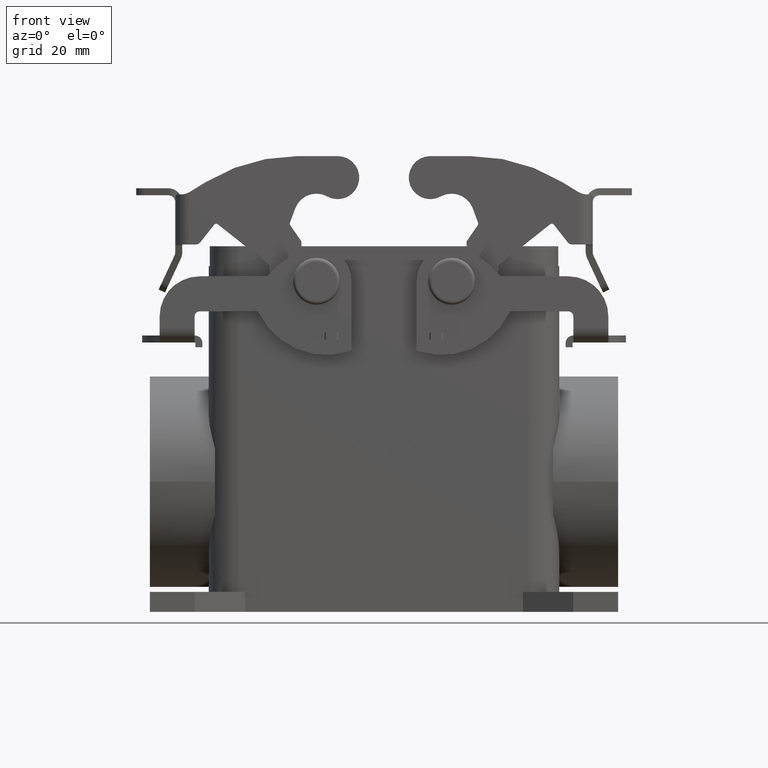
[diagram: clean part render]
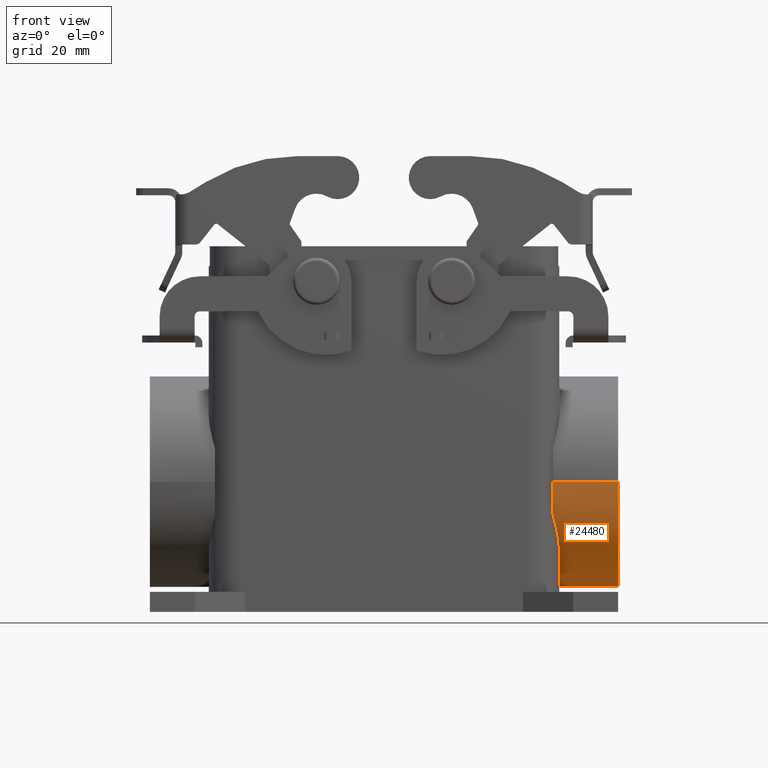
[diagram: same view with one face highlighted and labeled with its STEP entity id]
A machine part, front view. The second image highlights one B-rep face of the part: STEP entity #24480.
In plain terms, the highlighted cylindrical surface (partial cylindrical patch) has radius 21 mm, axis along (-1, 0, 0).
Its self-contained STEP definition (entity closure, byte-faithful):
#22870=CARTESIAN_POINT('',(33.25,0.,-40.));
#22880=DIRECTION('',(-1.,0.,0.));
#22890=DIRECTION('',(0.,-1.,0.));
#22900=AXIS2_PLACEMENT_3D('',#22870,#22880,#22890);
#22910=CYLINDRICAL_SURFACE('',#22900,21.);
#22920=CARTESIAN_POINT('',(33.25,21.,-40.));
#22930=DIRECTION('',(-1.,0.,0.));
#22940=VECTOR('',#22930,1.);
#22950=LINE('',#22920,#22940);
#22960=CARTESIAN_POINT('',(33.25,21.,-40.));
#22970=VERTEX_POINT('',#22960);
#22980=CARTESIAN_POINT('',(20.25,21.,-40.));
#22990=VERTEX_POINT('',#22980);
#23000=EDGE_CURVE('',#22970,#22990,#22950,.T.);
#23010=ORIENTED_EDGE('',*,*,#23000,.F.);
#23020=CARTESIAN_POINT('',(20.25,0.,-40.));
#23030=DIRECTION('',(1.,0.,0.));
#23040=DIRECTION('',(0.,-1.,0.));
#23050=AXIS2_PLACEMENT_3D('',#23020,#23030,#23040);
#23060=CIRCLE('',#23050,21.);
#23070=CARTESIAN_POINT('',(20.25,19.9157195746538,-46.6606391452887));
#23080=VERTEX_POINT('',#23070);
#23090=EDGE_CURVE('',#23080,#22990,#23060,.T.);
#23100=ORIENTED_EDGE('',*,*,#23090,.T.);
#23110=CARTESIAN_POINT('',(20.25,19.9157195746538,-46.6606391452887));
#23120=CARTESIAN_POINT('',(20.2883767828011,19.8659913522427,
-46.809329580378));
#23130=CARTESIAN_POINT('',(20.3267965326424,19.8145922746111,
-46.9574802820684));
#23140=CARTESIAN_POINT('',(20.3650976405297,19.7615274380406,
-47.1050709578137));
#23150=CARTESIAN_POINT('',(20.4033987487195,19.7084626010511,
-47.2526616347245));
#23160=CARTESIAN_POINT('',(20.4415812746475,19.6537319973468,
-47.3996922796367));
#23170=CARTESIAN_POINT('',(20.4794890897012,19.597340497402,
-47.5461410952145));
#23180=CARTESIAN_POINT('',(20.5173969049363,19.5409489971874,
-47.6925899114931));
#23190=CARTESIAN_POINT('',(20.5550300726837,19.4828966019911,
-47.8384568748946));
#23200=CARTESIAN_POINT('',(20.5922370265403,19.4231879971934,
-47.9837189345369));
#23210=CARTESIAN_POINT('',(20.6294417237685,19.3634830137652,
-48.1289721839315));
#23220=CARTESIAN_POINT('',(20.6662268982334,19.302112320304,
-48.2736456350323));
#23230=CARTESIAN_POINT('',(20.7024602597007,19.2390478828999,
-48.4177809759718));
#23240=CARTESIAN_POINT('',(20.7749237418458,19.1129246487102,
-48.7060387660768));
#23250=CARTESIAN_POINT('',(20.8451501626198,18.9800731090618,
-48.9920308513166));
#23260=CARTESIAN_POINT('',(20.9119393003487,18.8405429951074,
-49.2754482182425));
#23270=CARTESIAN_POINT('',(20.9453338799864,18.7707779156234,
-49.4171569474218));
#23280=CARTESIAN_POINT('',(20.9778693578236,18.699343672852,
-49.5582214249969));
#23290=CARTESIAN_POINT('',(21.0093966422258,18.6262467545755,
-49.698604633537));
#23300=CARTESIAN_POINT('',(21.0409249801447,18.5531473936903,
-49.8389925331262));
#23310=CARTESIAN_POINT('',(21.0714630622551,18.4783433683495,
-49.9787790843531));
#23320=CARTESIAN_POINT('',(21.1008516088041,18.4018506584233,
-50.1178996014532));
#23330=CARTESIAN_POINT('',(21.1302401541766,18.3253579515592,
-50.257020112984));
#23340=CARTESIAN_POINT('',(21.1584792158182,18.2471766018043,
-50.3954745228282));
#23350=CARTESIAN_POINT('',(21.1854080129149,18.1673251489206,
-50.5331997481011));
#23360=CARTESIAN_POINT('',(21.2123368094633,18.0874736976627,
-50.6709249705699));
#23370=CARTESIAN_POINT('',(21.2379554139272,18.0059521707404,
-50.8079209728712));
#23380=CARTESIAN_POINT('',(21.2621005105393,17.9227814281848,
-50.9441265470334));
#23390=CARTESIAN_POINT('',(21.286243743224,17.8396171061551,
-51.0803216065439));
#23400=CARTESIAN_POINT('',(21.3089194868721,17.7547872805956,
-51.2157548952033));
#23410=CARTESIAN_POINT('',(21.3299694173103,17.6682582956666,
-51.35044707479));
#23420=CARTESIAN_POINT('',(21.3510178681595,17.5817353928161,
-51.4851297869316));
#23430=CARTESIAN_POINT('',(21.3704334887982,17.4935389595446,
-51.6190300270251));
#23440=CARTESIAN_POINT('',(21.3880341674817,17.4037129810172,
-51.7520540534144));
#23450=CARTESIAN_POINT('',(21.4056348456611,17.3138870050628,
-51.8850780759932));
#23460=CARTESIAN_POINT('',(21.4214206579212,17.2224315362035,
-52.0172258155879));
#23470=CARTESIAN_POINT('',(21.4352054162366,17.1293956263543,
-52.1484075283797));
#23480=CARTESIAN_POINT('',(21.4489894273181,17.0363647597268,
-52.2795821301704));
#23490=CARTESIAN_POINT('',(21.4607752814732,16.9417418997959,
-52.4098084196681));
#23500=CARTESIAN_POINT('',(21.4703721749691,16.8455300937106,
-52.5390635958929));
#23510=CARTESIAN_POINT('',(21.4799688633692,16.7493203437736,
-52.6683160097974));
#23520=CARTESIAN_POINT('',(21.4873723295644,16.6515637153786,
-52.7965404974052));
#23530=CARTESIAN_POINT('',(21.4923803464142,16.5522875847781,
-52.923690483403));
#23540=CARTESIAN_POINT('',(21.4973883922669,16.4530108792393,
-53.0508412057649));
#23550=CARTESIAN_POINT('',(21.5,16.3522286203797,-53.1768989715424));
#23560=CARTESIAN_POINT('',(21.5,16.25,-53.301785594423));
#23570=B_SPLINE_CURVE_WITH_KNOTS('',3,(#23110,#23120,#23130,#23140,
#23150,#23160,#23170,#23180,#23190,#23200,#23210,#23220,#23230,#23240,
#23250,#23260,#23270,#23280,#23290,#23300,#23310,#23320,#23330,#23340,
#23350,#23360,#23370,#23380,#23390,#23400,#23410,#23420,#23430,#23440,
#23450,#23460,#23470,#23480,#23490,#23500,#23510,#23520,#23530,#23540,
#23550,#23560),.UNSPECIFIED.,.F.,.F.,(4,3,3,3,3,3,3,3,3,3,3,3,3,3,3,4),(
0.,0.484305253596196,0.968655349831781,1.45293340259057,1.93716134971959
,2.90590140570524,3.3901476455671,3.87444007946818,4.3588373050292,
4.84315126400837,5.32740526702867,5.81182560930186,6.29617301453959,
6.78037545541279,7.26456501471451,7.74873538491459),.UNSPECIFIED.);
#23580=CARTESIAN_POINT('',(21.5,16.25,-53.301785594423));
#23590=VERTEX_POINT('',#23580);
#23600=EDGE_CURVE('',#23080,#23590,#23570,.T.);
#23610=ORIENTED_EDGE('',*,*,#23600,.F.);
#23620=CARTESIAN_POINT('',(21.5,0.,-40.));
#23630=DIRECTION('',(-1.,0.,0.));
#23640=DIRECTION('',(0.,-1.,0.));
#23650=AXIS2_PLACEMENT_3D('',#23620,#23630,#23640);
#23660=CIRCLE('',#23650,21.);
#23670=CARTESIAN_POINT('',(21.5,-16.25,-53.301785594423));
#23680=VERTEX_POINT('',#23670);
#23690=EDGE_CURVE('',#23590,#23680,#23660,.T.);
#23700=ORIENTED_EDGE('',*,*,#23690,.F.);
#23710=CARTESIAN_POINT('',(21.5,-16.2499999999997,-53.3017855944235));
#23720=CARTESIAN_POINT('',(21.5,-16.35222967979,-53.1768976773238));
#23730=CARTESIAN_POINT('',(21.4973878967916,-16.4530250917143,
-53.0508232733011));
#23740=CARTESIAN_POINT('',(21.4923796736825,-16.5523009203381,
-52.9236734035868));
#23750=CARTESIAN_POINT('',(21.4873710875637,-16.6515839447462,
-52.7965143177011));
#23760=CARTESIAN_POINT('',(21.4799662441862,-16.7493501235845,
-52.6682764668193));
#23770=CARTESIAN_POINT('',(21.4703700214557,-16.8455516828446,
-52.539034592049));
#23780=CARTESIAN_POINT('',(21.4607733968692,-16.9417572706865,
-52.4097873050851));
#23790=CARTESIAN_POINT('',(21.4489835197123,-17.0364092110862,
-52.2795204226765));
#23800=CARTESIAN_POINT('',(21.4351991374398,-17.1294380017572,
-52.1483477783588));
#23810=CARTESIAN_POINT('',(21.4214158593594,-17.2224593403968,
-52.0171856415696));
#23820=CARTESIAN_POINT('',(21.4056332007311,-17.3138953623348,
-51.8850656882558));
#23830=CARTESIAN_POINT('',(21.3880342588942,-17.4037125144888,
-51.7520547443001));
#23840=CARTESIAN_POINT('',(21.3704355181391,-17.4935286404114,
-51.6190453200988));
#23850=CARTESIAN_POINT('',(21.3510211414812,-17.5817213104445,
-51.4851514545964));
#23860=CARTESIAN_POINT('',(21.3299717771303,-17.6682485952274,
-51.3504621746096));
#23870=CARTESIAN_POINT('',(21.3089223484836,-17.7547761443099,
-51.2157724832114));
#23880=CARTESIAN_POINT('',(21.2862381767248,-17.8396371563957,
-51.0802892255755));
#23890=CARTESIAN_POINT('',(21.2620957934869,-17.9227976765529,
-50.9440999376536));
#23900=CARTESIAN_POINT('',(21.2379518903774,-18.0059634320389,
-50.8079020760036));
#23910=CARTESIAN_POINT('',(21.2123345835208,-18.0874804412719,
-50.6709134323494));
#23920=CARTESIAN_POINT('',(21.1854069726917,-18.1673282334719,
-50.5331944279641));
#23930=CARTESIAN_POINT('',(21.15847936133,-18.2471760272514,
-50.3954754208546));
#23940=CARTESIAN_POINT('',(21.1302413720161,-18.325354578102,
-50.2570260857344));
#23950=CARTESIAN_POINT('',(21.1008535278766,-18.4018456635516,
-50.117908685806));
#23960=CARTESIAN_POINT('',(21.0714656684107,-18.4783367888933,
-49.9787912133242));
#23970=CARTESIAN_POINT('',(21.04092796506,-18.553140254142,
-49.8390060326418));
#23980=CARTESIAN_POINT('',(21.00939923022,-18.6262407542274,
-49.6986161572442));
#23990=CARTESIAN_POINT('',(20.9778696817983,-18.6993431406312,
-49.5582226591627));
#24000=CARTESIAN_POINT('',(20.9453323396396,-18.7707812868046,
-49.4171502782643));
#24010=CARTESIAN_POINT('',(20.9119370844581,-18.8405476243402,
-49.2754388152165));
#24020=CARTESIAN_POINT('',(20.8451465394803,-18.9800803717254,
-48.9920157422342));
#24030=CARTESIAN_POINT('',(20.7749230827943,-19.1129247626711,
-48.7060367891282));
#24040=CARTESIAN_POINT('',(20.7024708365975,-19.2390294736509,
-48.4178230506463));
#24050=CARTESIAN_POINT('',(20.6662463005113,-19.3020790669114,
-48.2737224945117));
#24060=CARTESIAN_POINT('',(20.6294619041158,-19.3634502522878,
-48.1290511416063));
#24070=CARTESIAN_POINT('',(20.592246008097,-19.423173583815,
-47.9837540000297));
#24080=CARTESIAN_POINT('',(20.5550317872619,-19.4828942270407,
-47.8384633986528));
#24090=CARTESIAN_POINT('',(20.5173930939295,-19.5409549286602,
-47.6925751279224));
#24100=CARTESIAN_POINT('',(20.4794818825406,-19.5973512187181,
-47.5461132518804));
#24110=CARTESIAN_POINT('',(20.4415706712343,-19.653747508653,
-47.3996513761574));
#24120=CARTESIAN_POINT('',(20.4033868793812,-19.7084793863243,
-47.2526159165805));
#24130=CARTESIAN_POINT('',(20.3650869388459,-19.7615422647993,
-47.1050297196106));
#24140=CARTESIAN_POINT('',(20.3267868633852,-19.8146053302075,
-46.957443002715));
#24150=CARTESIAN_POINT('',(20.2883711645247,-19.8659986323448,
-46.8093078124261));
#24160=CARTESIAN_POINT('',(20.25,-19.9157195746538,-46.6606391452886));
#24170=B_SPLINE_CURVE_WITH_KNOTS('',3,(#23710,#23720,#23730,#23740,
#23750,#23760,#23770,#23780,#23790,#23800,#23810,#23820,#23830,#23840,
#23850,#23860,#23870,#23880,#23890,#23900,#23910,#23920,#23930,#23940,
#23950,#23960,#23970,#23980,#23990,#24000,#24010,#24020,#24030,#24040,
#24050,#24060,#24070,#24080,#24090,#24100,#24110,#24120,#24130,#24140,
#24150,#24160),.UNSPECIFIED.,.F.,.F.,(4,3,3,3,3,3,3,3,3,3,3,3,3,3,3,4),(
0.,0.484192049911232,0.968396150370341,1.4526358901888,1.93690893696535,
2.42131201617731,2.90561565373173,3.38990431690111,3.8742847623414,
4.35857449179179,4.84284469167173,5.81152690718849,6.29576302077546,
6.78011072940291,7.26447524172254,7.74873538491897),.UNSPECIFIED.);
#24180=CARTESIAN_POINT('',(20.25,-19.9157195746538,-46.6606391452886));
#24190=VERTEX_POINT('',#24180);
#24200=EDGE_CURVE('',#23680,#24190,#24170,.T.);
#24210=ORIENTED_EDGE('',*,*,#24200,.F.);
#24220=CARTESIAN_POINT('',(20.25,0.,-40.));
#24230=DIRECTION('',(1.,0.,0.));
#24240=DIRECTION('',(0.,-1.,0.));
#24250=AXIS2_PLACEMENT_3D('',#24220,#24230,#24240);
#24260=CIRCLE('',#24250,21.);
#24270=CARTESIAN_POINT('',(20.25,-21.,-40.));
#24280=VERTEX_POINT('',#24270);
#24290=EDGE_CURVE('',#24280,#24190,#24260,.T.);
#24300=ORIENTED_EDGE('',*,*,#24290,.T.);
#24310=CARTESIAN_POINT('',(33.25,-21.,-40.));
#24320=DIRECTION('',(-1.,0.,0.));
#24330=VECTOR('',#24320,1.);
#24340=LINE('',#24310,#24330);
#24350=CARTESIAN_POINT('',(33.25,-21.,-40.));
#24360=VERTEX_POINT('',#24350);
#24370=EDGE_CURVE('',#24360,#24280,#24340,.T.);
#24380=ORIENTED_EDGE('',*,*,#24370,.T.);
#24390=CARTESIAN_POINT('',(33.25,0.,-40.));
#24400=DIRECTION('',(-1.,0.,0.));
#24410=DIRECTION('',(0.,-1.,0.));
#24420=AXIS2_PLACEMENT_3D('',#24390,#24400,#24410);
#24430=CIRCLE('',#24420,21.);
#24440=EDGE_CURVE('',#22970,#24360,#24430,.T.);
#24450=ORIENTED_EDGE('',*,*,#24440,.T.);
#24460=EDGE_LOOP('',(#24450,#24380,#24300,#24210,#23700,#23610,#23100,
#23010));
#24470=FACE_OUTER_BOUND('',#24460,.T.);
#24480=ADVANCED_FACE('',(#24470),#22910,.T.);